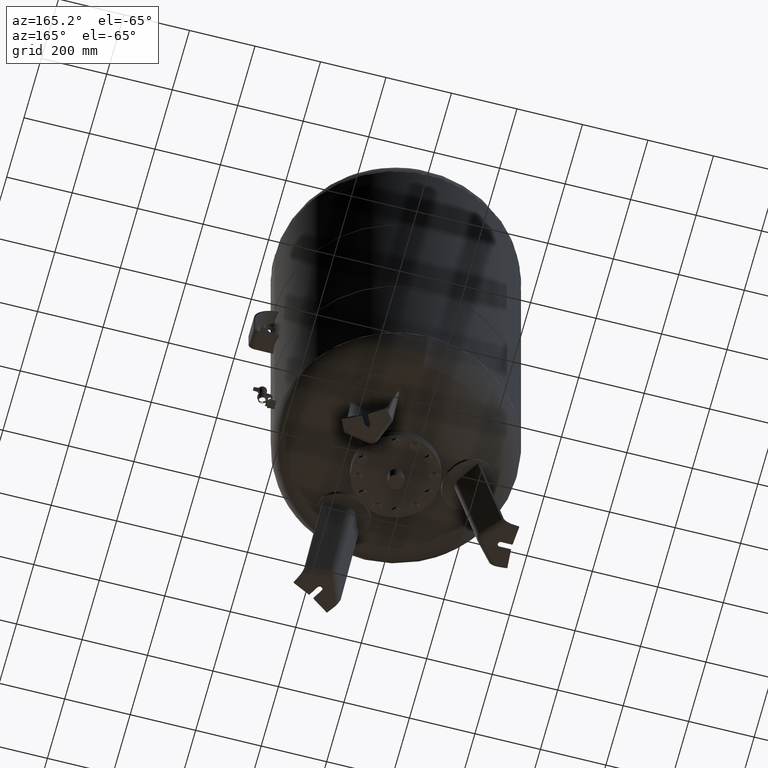
[diagram: clean part render]
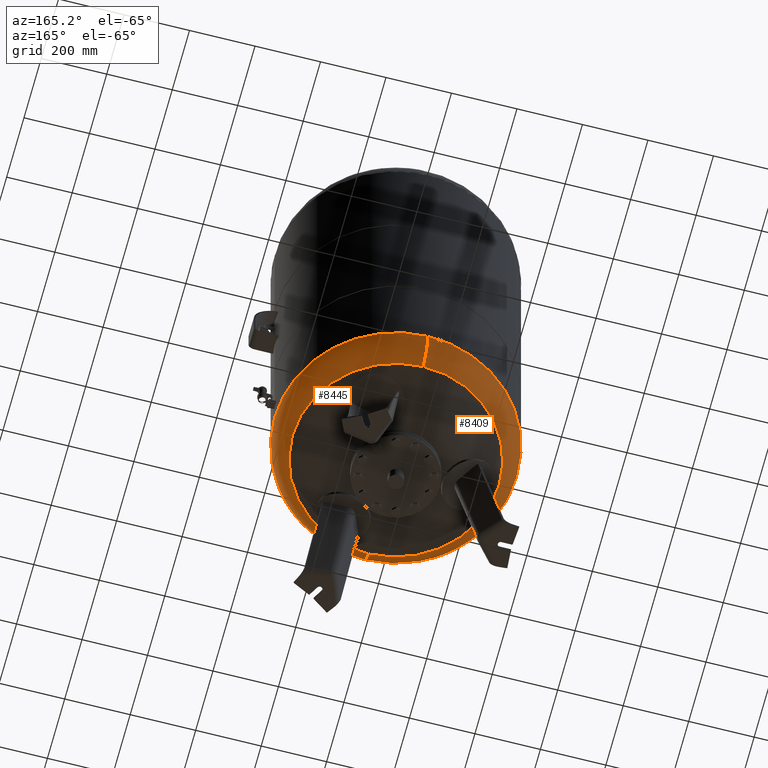
[diagram: same view with one multi-face feature highlighted, each face labeled with its STEP entity id]
A machine part, auxiliary view. The highlighted faces form ONE feature: a constant-radius fillet chain: 2 tangent blend faces with common blend radius 115.5 mm. The faces share edges in the B-rep.
Their STEP definitions:
[1] entity #8445 (Torus):
#8331=CARTESIAN_POINT('',(370.0,1.062956E-014,513.793879611869560));
#8332=VERTEX_POINT('',#8331);
#8339=CARTESIAN_POINT('',(-4.531044E-014,369.999999999999940,513.793879611869780));
#8340=VERTEX_POINT('',#8339);
#8341=CARTESIAN_POINT('',(0.0,-3.468087E-014,513.793879611869560));
#8342=DIRECTION('',(0.0,0.0,1.0));
#8343=DIRECTION('',(-1.0,0.0,0.0));
#8344=AXIS2_PLACEMENT_3D('',#8341,#8342,#8343);
#8345=CIRCLE('',#8344,370.0);
#8346=EDGE_CURVE('',#8332,#8340,#8345,.T.);
#8363=CARTESIAN_POINT('',(0.0,-370.000000000000060,513.793879611869330));
#8364=VERTEX_POINT('',#8363);
#8365=CARTESIAN_POINT('',(0.0,-315.931034482758610,415.985505725079460));
#8366=VERTEX_POINT('',#8365);
#8367=CARTESIAN_POINT('',(0.0,-254.500000000000060,513.793879611869440));
#8368=DIRECTION('',(1.0,0.0,0.0));
#8369=DIRECTION('',(0.0,-1.0,0.0));
#8370=AXIS2_PLACEMENT_3D('',#8367,#8368,#8369);
#8371=CIRCLE('',#8370,115.500000000000000);
#8372=EDGE_CURVE('',#8364,#8366,#8371,.T.);
#8382=CARTESIAN_POINT('',(-3.868912E-014,315.931034482758610,415.985505725079580));
#8383=VERTEX_POINT('',#8382);
#8384=CARTESIAN_POINT('',(-3.116623E-014,254.500000000000000,513.793879611869670));
#8385=DIRECTION('',(-1.0,0.0,0.0));
#8386=DIRECTION('',(0.0,1.0,0.0));
#8387=AXIS2_PLACEMENT_3D('',#8384,#8385,#8386);
#8388=CIRCLE('',#8387,115.500000000000000);
#8389=EDGE_CURVE('',#8340,#8383,#8388,.T.);
#8417=CARTESIAN_POINT('',(0.0,-1.671377E-014,415.985505725079520));
#8418=DIRECTION('',(0.0,0.0,1.0));
#8419=DIRECTION('',(-1.0,0.0,0.0));
#8420=AXIS2_PLACEMENT_3D('',#8417,#8418,#8419);
#8421=CIRCLE('',#8420,315.931034482758610);
#8422=EDGE_CURVE('',#8366,#8383,#8421,.T.);
#8427=CARTESIAN_POINT('',(0.0,-3.468087E-014,513.793879611869560));
#8428=DIRECTION('',(0.0,-1.836970E-016,1.0));
#8429=DIRECTION('',(0.0,-1.0,0.0));
#8430=AXIS2_PLACEMENT_3D('',#8427,#8428,#8429);
#8431=TOROIDAL_SURFACE('',#8430,254.500000000000030,115.500000000000000);
#8432=ORIENTED_EDGE('',*,*,#8372,.T.);
#8433=ORIENTED_EDGE('',*,*,#8422,.T.);
#8434=ORIENTED_EDGE('',*,*,#8389,.F.);
#8435=ORIENTED_EDGE('',*,*,#8346,.F.);
#8436=CARTESIAN_POINT('',(0.0,-3.468087E-014,513.793879611869560));
#8437=DIRECTION('',(0.0,0.0,1.0));
#8438=DIRECTION('',(-1.0,0.0,0.0));
#8439=AXIS2_PLACEMENT_3D('',#8436,#8437,#8438);
#8440=CIRCLE('',#8439,370.0);
#8441=EDGE_CURVE('',#8364,#8332,#8440,.T.);
#8442=ORIENTED_EDGE('',*,*,#8441,.F.);
#8443=EDGE_LOOP('',(#8432,#8433,#8434,#8435,#8442));
#8444=FACE_OUTER_BOUND('',#8443,.T.);
#8445=ADVANCED_FACE('',(#8444),#8431,.T.);
[2] entity #8409 (Torus):
#8314=CARTESIAN_POINT('',(-370.0,-3.468087E-014,513.793879611869560));
#8315=VERTEX_POINT('',#8314);
#8339=CARTESIAN_POINT('',(-4.531044E-014,369.999999999999940,513.793879611869780));
#8340=VERTEX_POINT('',#8339);
#8348=CARTESIAN_POINT('',(0.0,-3.468087E-014,513.793879611869560));
#8349=DIRECTION('',(0.0,0.0,1.0));
#8350=DIRECTION('',(-1.0,0.0,0.0));
#8351=AXIS2_PLACEMENT_3D('',#8348,#8349,#8350);
#8352=CIRCLE('',#8351,370.0);
#8353=EDGE_CURVE('',#8340,#8315,#8352,.T.);
#8358=CARTESIAN_POINT('',(0.0,-3.468087E-014,513.793879611869560));
#8359=DIRECTION('',(0.0,-1.836970E-016,1.0));
#8360=DIRECTION('',(0.0,-1.0,0.0));
#8361=AXIS2_PLACEMENT_3D('',#8358,#8359,#8360);
#8362=TOROIDAL_SURFACE('',#8361,254.500000000000030,115.500000000000000);
#8363=CARTESIAN_POINT('',(0.0,-370.000000000000060,513.793879611869330));
#8364=VERTEX_POINT('',#8363);
#8365=CARTESIAN_POINT('',(0.0,-315.931034482758610,415.985505725079460));
#8366=VERTEX_POINT('',#8365);
#8367=CARTESIAN_POINT('',(0.0,-254.500000000000060,513.793879611869440));
#8368=DIRECTION('',(1.0,0.0,0.0));
#8369=DIRECTION('',(0.0,-1.0,0.0));
#8370=AXIS2_PLACEMENT_3D('',#8367,#8368,#8369);
#8371=CIRCLE('',#8370,115.500000000000000);
#8372=EDGE_CURVE('',#8364,#8366,#8371,.T.);
#8373=ORIENTED_EDGE('',*,*,#8372,.F.);
#8374=CARTESIAN_POINT('',(0.0,-3.468087E-014,513.793879611869560));
#8375=DIRECTION('',(0.0,0.0,1.0));
#8376=DIRECTION('',(-1.0,0.0,0.0));
#8377=AXIS2_PLACEMENT_3D('',#8374,#8375,#8376);
#8378=CIRCLE('',#8377,370.0);
#8379=EDGE_CURVE('',#8315,#8364,#8378,.T.);
#8380=ORIENTED_EDGE('',*,*,#8379,.F.);
#8381=ORIENTED_EDGE('',*,*,#8353,.F.);
#8382=CARTESIAN_POINT('',(-3.868912E-014,315.931034482758610,415.985505725079580));
#8383=VERTEX_POINT('',#8382);
#8384=CARTESIAN_POINT('',(-3.116623E-014,254.500000000000000,513.793879611869670));
#8385=DIRECTION('',(-1.0,0.0,0.0));
#8386=DIRECTION('',(0.0,1.0,0.0));
#8387=AXIS2_PLACEMENT_3D('',#8384,#8385,#8386);
#8388=CIRCLE('',#8387,115.500000000000000);
#8389=EDGE_CURVE('',#8340,#8383,#8388,.T.);
#8390=ORIENTED_EDGE('',*,*,#8389,.T.);
#8391=CARTESIAN_POINT('',(-315.931034482758610,-1.671377E-014,415.985505725079520));
#8392=VERTEX_POINT('',#8391);
#8393=CARTESIAN_POINT('',(0.0,-1.671377E-014,415.985505725079520));
#8394=DIRECTION('',(0.0,0.0,1.0));
#8395=DIRECTION('',(-1.0,0.0,0.0));
#8396=AXIS2_PLACEMENT_3D('',#8393,#8394,#8395);
#8397=CIRCLE('',#8396,315.931034482758610);
#8398=EDGE_CURVE('',#8383,#8392,#8397,.T.);
#8399=ORIENTED_EDGE('',*,*,#8398,.T.);
#8400=CARTESIAN_POINT('',(0.0,-1.671377E-014,415.985505725079520));
#8401=DIRECTION('',(0.0,0.0,1.0));
#8402=DIRECTION('',(-1.0,0.0,0.0));
#8403=AXIS2_PLACEMENT_3D('',#8400,#8401,#8402);
#8404=CIRCLE('',#8403,315.931034482758610);
#8405=EDGE_CURVE('',#8392,#8366,#8404,.T.);
#8406=ORIENTED_EDGE('',*,*,#8405,.T.);
#8407=EDGE_LOOP('',(#8373,#8380,#8381,#8390,#8399,#8406));
#8408=FACE_OUTER_BOUND('',#8407,.T.);
#8409=ADVANCED_FACE('',(#8408),#8362,.T.);